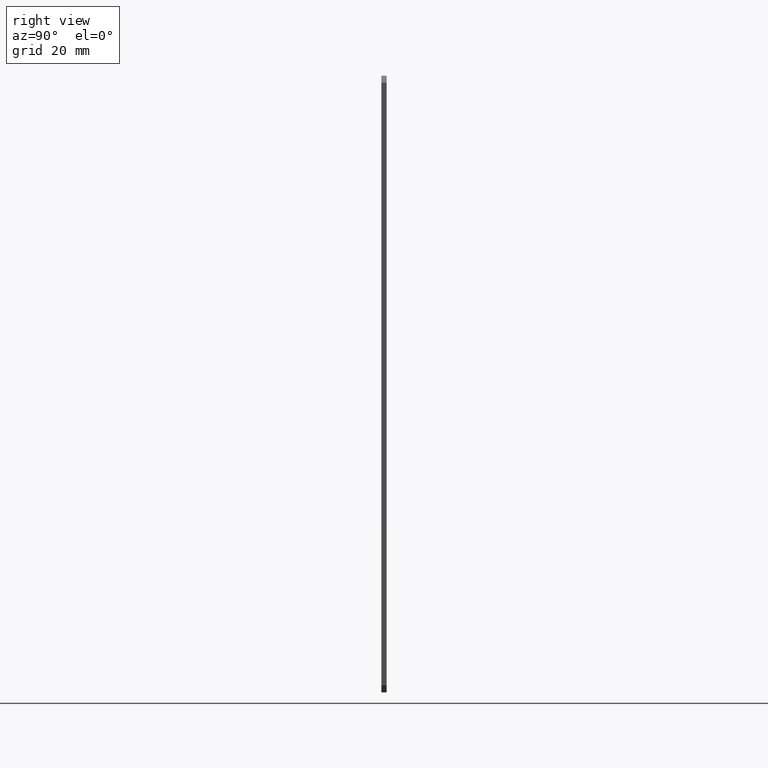
[diagram: clean part render]
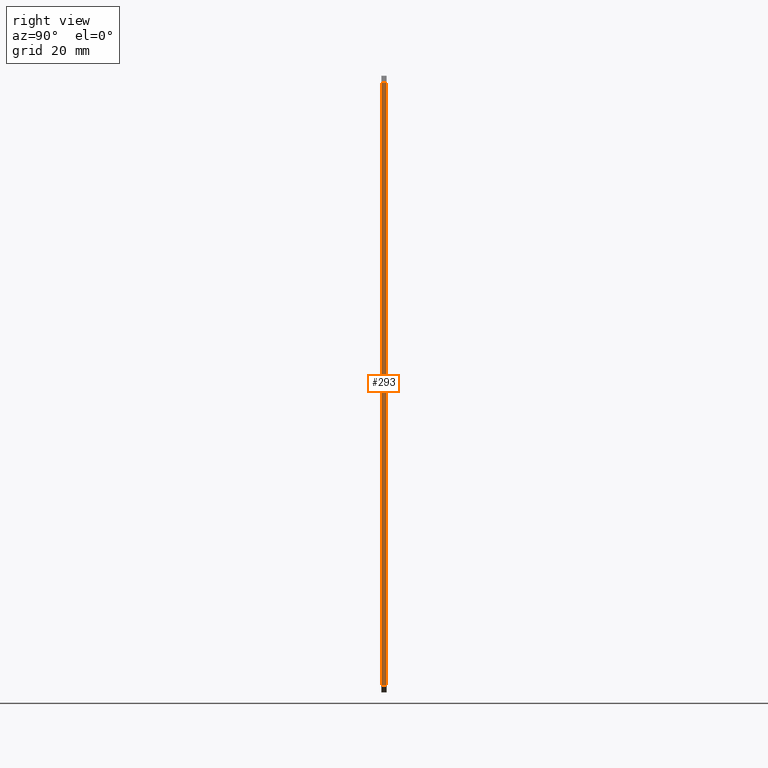
[diagram: same view with one face highlighted and labeled with its STEP entity id]
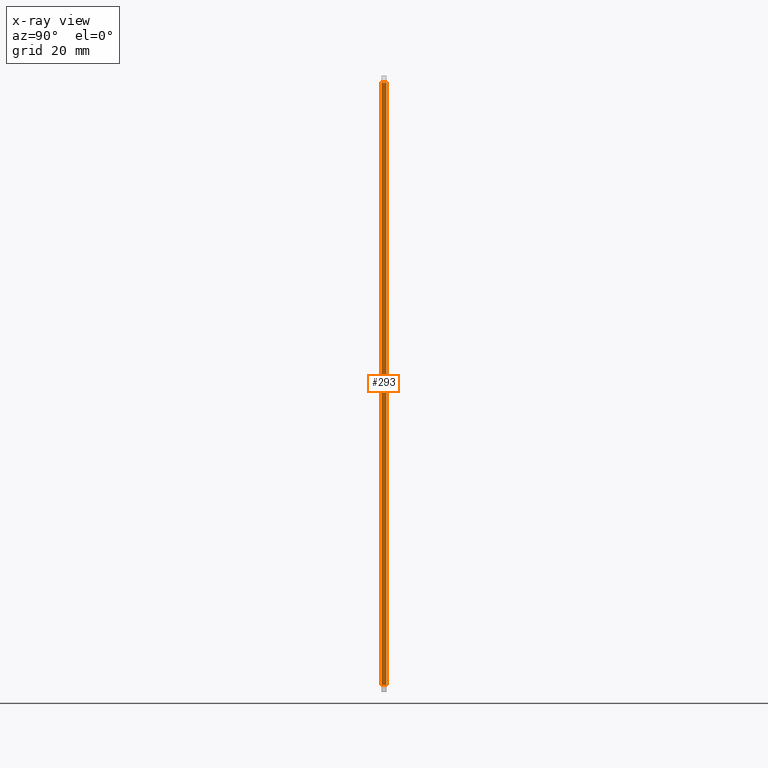
[diagram: x-ray of the same camera — body ghosted, the highlighted face saturated]
A machine part, right view. The second image highlights one B-rep face of the part: STEP entity #293.
The next image is the same camera in x-ray: the body ghosted, the highlighted face saturated — about 0% of this face is hidden behind the body in this view.
In plain terms, the highlighted planar face has unit normal (-1, 0, 0).
Its self-contained STEP definition (entity closure, byte-faithful):
#30 = VERTEX_POINT ( 'NONE', #112 ) ;
#31 = VERTEX_POINT ( 'NONE', #111 ) ;
#111 = CARTESIAN_POINT ( 'NONE',  ( 55.50000000000000000, 0.0000000000000000000, 84.99999999999963100 ) ) ;
#112 = CARTESIAN_POINT ( 'NONE',  ( 55.49999999999940300, 0.0000000000000000000, -85.00000000000038400 ) ) ;
#214 = VERTEX_POINT ( 'NONE', #416 ) ;
#216 = EDGE_CURVE ( 'NONE', #214, #217, #415, .T. ) ;
#217 = VERTEX_POINT ( 'NONE', #411 ) ;
#225 = EDGE_CURVE ( 'NONE', #31, #30, #401, .T. ) ;
#276 = ORIENTED_EDGE ( 'NONE', *, *, #290, .T. ) ;
#290 = EDGE_CURVE ( 'NONE', #214, #31, #541, .T. ) ;
#293 = ADVANCED_FACE ( 'NONE', ( #534 ), #532, .F. ) ;
#294 = EDGE_LOOP ( 'NONE', ( #295, #296, #298, #276 ) ) ;
#295 = ORIENTED_EDGE ( 'NONE', *, *, #225, .T. ) ;
#296 = ORIENTED_EDGE ( 'NONE', *, *, #297, .F. ) ;
#297 = EDGE_CURVE ( 'NONE', #217, #30, #533, .T. ) ;
#298 = ORIENTED_EDGE ( 'NONE', *, *, #216, .F. ) ;
#398 = DIRECTION ( 'NONE',  ( -3.510263974917773900E-015, 0.0000000000000000000, -1.000000000000000000 ) ) ;
#399 = VECTOR ( 'NONE', #398, 1000.000000000000000 ) ;
#400 = CARTESIAN_POINT ( 'NONE',  ( 55.50000000000000000, 0.0000000000000000000, 84.99999999999963100 ) ) ;
#401 = LINE ( 'NONE', #400, #399 ) ;
#411 = CARTESIAN_POINT ( 'NONE',  ( 55.49999999999940300, 1.500000000000000000, -85.00000000000038400 ) ) ;
#412 = DIRECTION ( 'NONE',  ( -3.510263974917773900E-015, 0.0000000000000000000, -1.000000000000000000 ) ) ;
#413 = VECTOR ( 'NONE', #412, 1000.000000000000000 ) ;
#414 = CARTESIAN_POINT ( 'NONE',  ( 55.50000000000000000, 1.500000000000000000, 84.99999999999963100 ) ) ;
#415 = LINE ( 'NONE', #414, #413 ) ;
#416 = CARTESIAN_POINT ( 'NONE',  ( 55.50000000000000000, 1.500000000000000000, 84.99999999999963100 ) ) ;
#525 = DIRECTION ( 'NONE',  ( -0.0000000000000000000, -1.000000000000000000, -0.0000000000000000000 ) ) ;
#526 = VECTOR ( 'NONE', #525, 1000.000000000000000 ) ;
#527 = CARTESIAN_POINT ( 'NONE',  ( 55.49999999999940300, 1.500000000000000000, -85.00000000000038400 ) ) ;
#528 = DIRECTION ( 'NONE',  ( 3.510263974917773900E-015, 0.0000000000000000000, 1.000000000000000000 ) ) ;
#529 = DIRECTION ( 'NONE',  ( -1.000000000000000000, 0.0000000000000000000, 3.510263974917773900E-015 ) ) ;
#530 = CARTESIAN_POINT ( 'NONE',  ( 55.50000000000000000, 1.500000000000000000, 84.99999999999963100 ) ) ;
#531 = AXIS2_PLACEMENT_3D ( 'NONE', #530, #529, #528 ) ;
#532 = PLANE ( 'NONE',  #531 ) ;
#533 = LINE ( 'NONE', #527, #526 ) ;
#534 = FACE_OUTER_BOUND ( 'NONE', #294, .T. ) ;
#535 = DIRECTION ( 'NONE',  ( -0.0000000000000000000, -1.000000000000000000, -0.0000000000000000000 ) ) ;
#536 = VECTOR ( 'NONE', #535, 1000.000000000000000 ) ;
#537 = CARTESIAN_POINT ( 'NONE',  ( 55.50000000000000000, 1.500000000000000000, 84.99999999999963100 ) ) ;
#541 = LINE ( 'NONE', #537, #536 ) ;